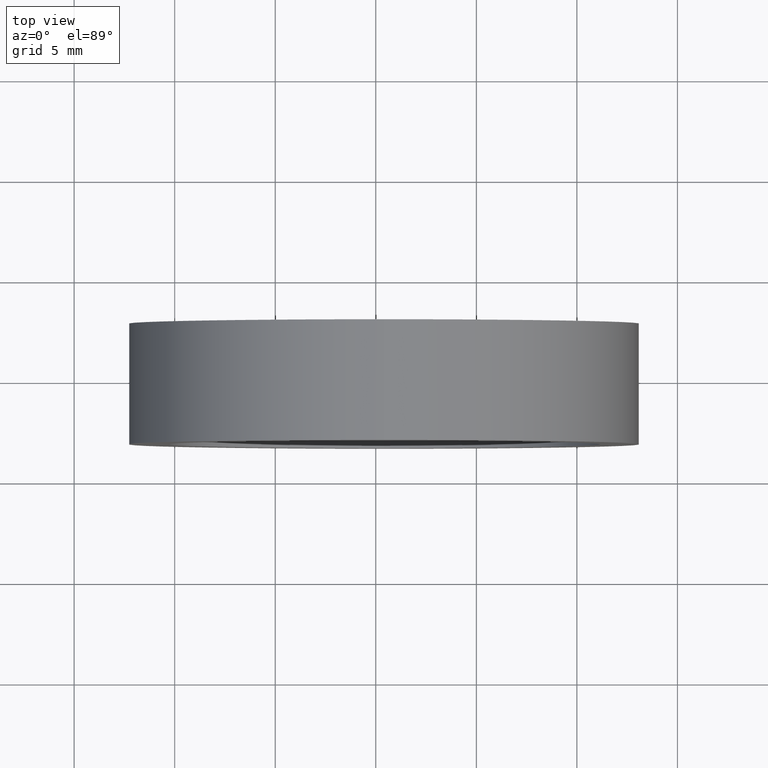
[diagram: clean part render]
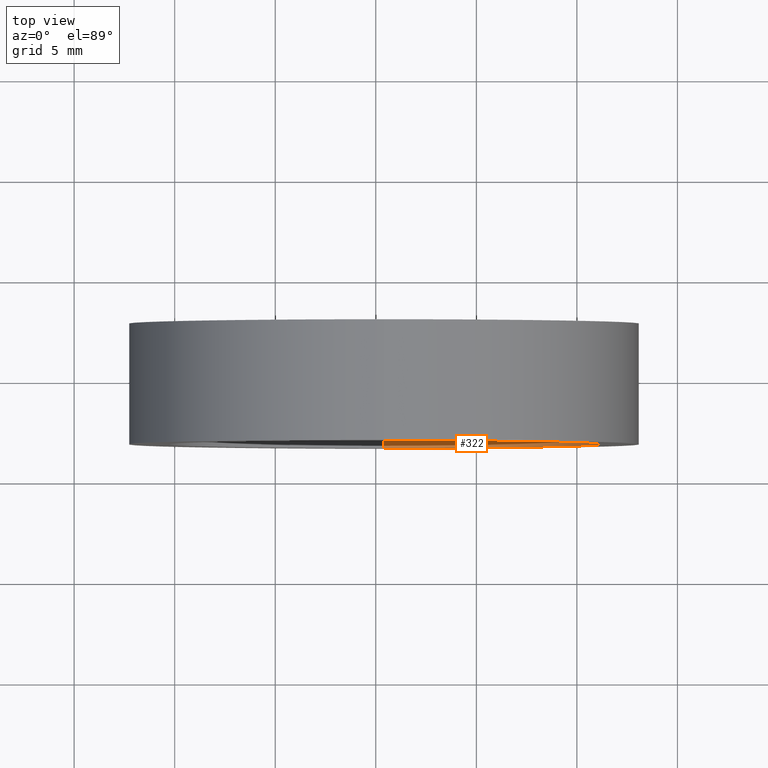
[diagram: same view with one face highlighted and labeled with its STEP entity id]
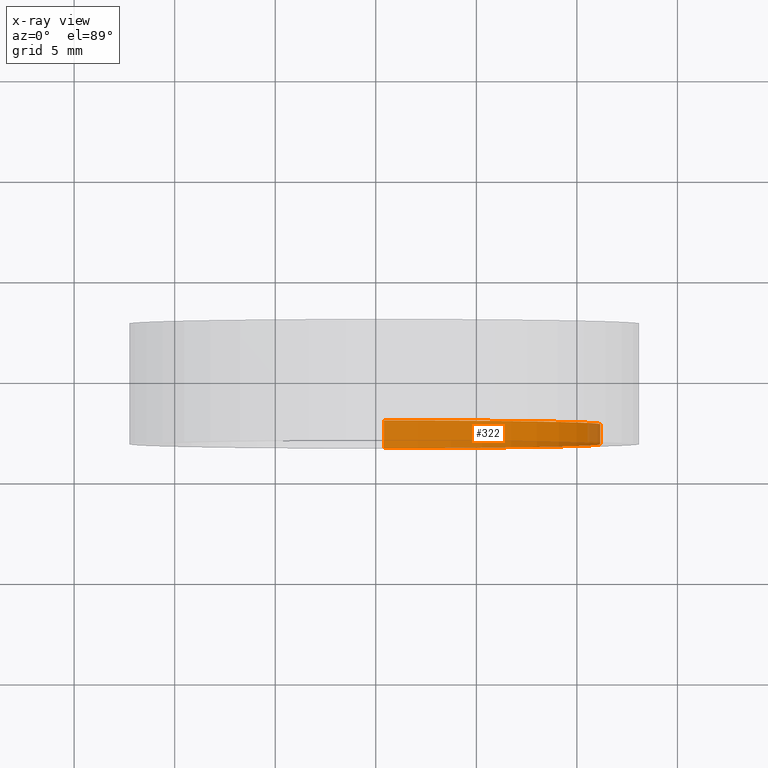
[diagram: x-ray of the same camera — body ghosted, the highlighted face saturated]
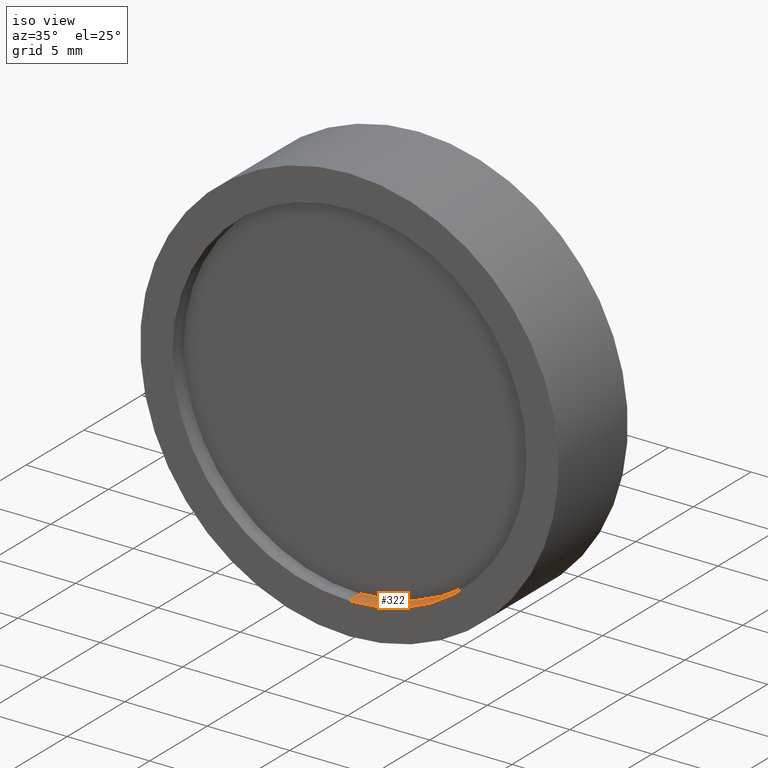
[diagram: same view with one face highlighted and labeled with its STEP entity id]
A machine part, top view. The second image highlights one B-rep face of the part: STEP entity #322.
The next image is the same camera in x-ray: the body ghosted, the highlighted face saturated — about 4% of this face is hidden behind the body in this view.
A second angle (iso view) of the same face is appended — the face is thin or edge-on in the first view.
In plain terms, the highlighted cylindrical surface (partial cylindrical patch) has radius 10.75 mm, axis along (-0, -1, -0).
Its self-contained STEP definition (entity closure, byte-faithful):
#35 = ORIENTED_EDGE ( 'NONE', *, *, #462, .T. ) ;
#38 = DIRECTION ( 'NONE',  ( -0.0000000000000000000, -1.000000000000000000, -0.0000000000000000000 ) ) ;
#48 = EDGE_CURVE ( 'NONE', #725, #635, #49, .T. ) ;
#49 = CIRCLE ( 'NONE', #198, 10.75000000000000000 ) ;
#69 = CARTESIAN_POINT ( 'NONE',  ( -34.59164044491552659, -8.259296399802728672, -10.75000000000000000 ) ) ;
#84 = LINE ( 'NONE', #815, #792 ) ;
#115 = EDGE_CURVE ( 'NONE', #682, #215, #244, .T. ) ;
#198 = AXIS2_PLACEMENT_3D ( 'NONE', #653, #301, #839 ) ;
#208 = LINE ( 'NONE', #543, #252 ) ;
#215 = VERTEX_POINT ( 'NONE', #413 ) ;
#230 = CARTESIAN_POINT ( 'NONE',  ( -34.59164044491552659, -8.259296399802728672, 0.0000000000000000000 ) ) ;
#233 = FACE_OUTER_BOUND ( 'NONE', #537, .T. ) ;
#244 = CIRCLE ( 'NONE', #367, 10.75000000000000000 ) ;
#249 = DIRECTION ( 'NONE',  ( 0.0000000000000000000, 0.0000000000000000000, -1.000000000000000000 ) ) ;
#252 = VECTOR ( 'NONE', #670, 1000.000000000000000 ) ;
#301 = DIRECTION ( 'NONE',  ( -0.0000000000000000000, -1.000000000000000000, -0.0000000000000000000 ) ) ;
#322 = ADVANCED_FACE ( 'NONE', ( #233 ), #823, .F. ) ;
#367 = AXIS2_PLACEMENT_3D ( 'NONE', #650, #841, #249 ) ;
#413 = CARTESIAN_POINT ( 'NONE',  ( -34.59164044491552659, -8.259296399802728672, 10.75000000000000000 ) ) ;
#462 = EDGE_CURVE ( 'NONE', #725, #682, #208, .T. ) ;
#501 = ORIENTED_EDGE ( 'NONE', *, *, #115, .T. ) ;
#513 = DIRECTION ( 'NONE',  ( 0.0000000000000000000, 0.0000000000000000000, -1.000000000000000000 ) ) ;
#537 = EDGE_LOOP ( 'NONE', ( #742, #640, #35, #501 ) ) ;
#543 = CARTESIAN_POINT ( 'NONE',  ( -34.59164044491552659, -8.259296399802728672, -10.75000000000000000 ) ) ;
#635 = VERTEX_POINT ( 'NONE', #731 ) ;
#640 = ORIENTED_EDGE ( 'NONE', *, *, #48, .F. ) ;
#650 = CARTESIAN_POINT ( 'NONE',  ( -34.59164044491552659, -8.259296399802728672, 0.0000000000000000000 ) ) ;
#653 = CARTESIAN_POINT ( 'NONE',  ( -34.59164044491552659, -7.259296399802728672, 0.0000000000000000000 ) ) ;
#670 = DIRECTION ( 'NONE',  ( -0.0000000000000000000, -1.000000000000000000, -0.0000000000000000000 ) ) ;
#682 = VERTEX_POINT ( 'NONE', #69 ) ;
#725 = VERTEX_POINT ( 'NONE', #735 ) ;
#731 = CARTESIAN_POINT ( 'NONE',  ( -34.59164044491552659, -7.259296399802728672, 10.75000000000000000 ) ) ;
#735 = CARTESIAN_POINT ( 'NONE',  ( -34.59164044491552659, -7.259296399802728672, -10.75000000000000000 ) ) ;
#742 = ORIENTED_EDGE ( 'NONE', *, *, #854, .F. ) ;
#792 = VECTOR ( 'NONE', #819, 1000.000000000000000 ) ;
#808 = AXIS2_PLACEMENT_3D ( 'NONE', #230, #38, #513 ) ;
#815 = CARTESIAN_POINT ( 'NONE',  ( -34.59164044491552659, -8.259296399802728672, 10.75000000000000000 ) ) ;
#819 = DIRECTION ( 'NONE',  ( -0.0000000000000000000, -1.000000000000000000, -0.0000000000000000000 ) ) ;
#823 = CYLINDRICAL_SURFACE ( 'NONE', #808, 10.75000000000000000 ) ;
#839 = DIRECTION ( 'NONE',  ( 0.0000000000000000000, 0.0000000000000000000, -1.000000000000000000 ) ) ;
#841 = DIRECTION ( 'NONE',  ( -0.0000000000000000000, -1.000000000000000000, -0.0000000000000000000 ) ) ;
#854 = EDGE_CURVE ( 'NONE', #635, #215, #84, .T. ) ;